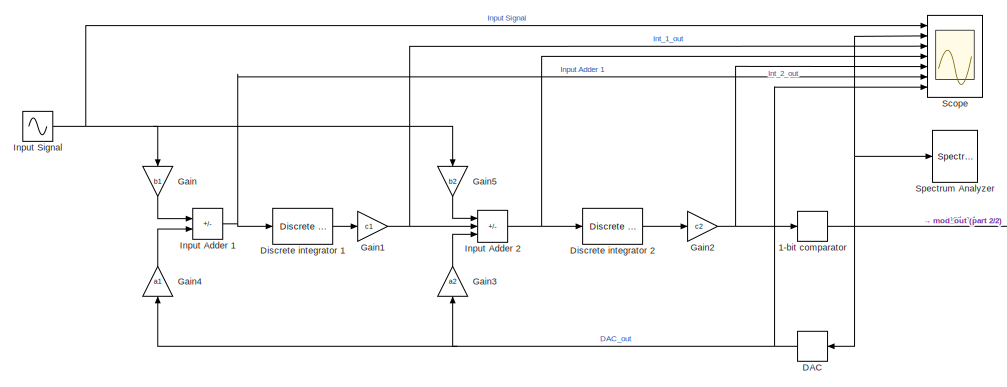
[diagram: root canvas - part 1/2, left side, full height]
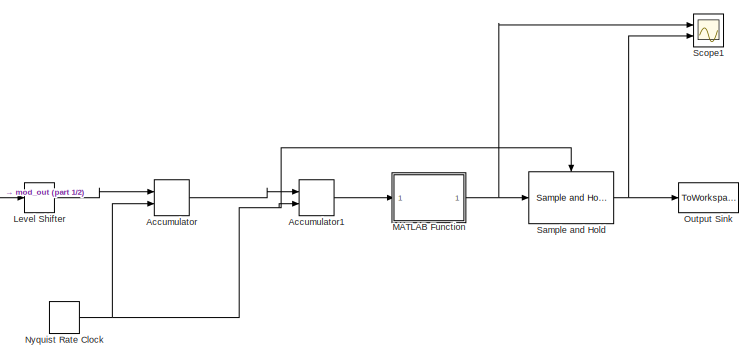
[diagram: root canvas - part 2/2, right side, full height]
MODEL slx_cf5fac6212e2
KIND model
CONFIG AbsTol = auto
CONFIG EnableMultiTasking = off
CONFIG FixedStep = auto
CONFIG MaxStep = auto
CONFIG MinStep = auto
CONFIG RelTol = 1e-3
CONFIG SampleTimeConstraint = Unconstrained
CONFIG SolverName = VariableStepAuto
CONFIG StartTime = 0.0
CONFIG StopTime = 1 - 1/5.12e6
BLOCK [Relay] 1-bit comparator
  OffOutputValue = -1
  OffSwitchValue = 0
  OnSwitchValue = 0
BLOCK [DiscreteIntegrator] Accumulator
  ExternalReset = rising
  ICPrevOutput = DiscIntNeverNeededParam
  ICPrevScaledInput = DiscIntNeverNeededParam
  InitialConditionSetting = Auto
  IntegratorMethod = Accumulation: Forward Euler
  Ports = [2, 1]
  SampleTime = -1
BLOCK [DiscreteIntegrator] Accumulator1
  ExternalReset = rising
  ICPrevOutput = DiscIntNeverNeededParam
  ICPrevScaledInput = DiscIntNeverNeededParam
  InitialConditionSetting = Auto
  IntegratorMethod = Accumulation: Forward Euler
  Ports = [2, 1]
  SampleTime = -1
BLOCK [Relay] DAC
  OffOutputValue = -0.9
  OffSwitchValue = -1
  OnOutputValue = 0.9
  OnSwitchValue = 1
BLOCK [Reference] Discrete integrator 1  REF=simulink_extras/Additional
Discrete/Discrete
Transfer Fcn
(with initial states)
  Ports = [1, 1]
  SourceBlock = simulink_extras/Additional\nDiscrete/Discrete\nTransfer Fcn\n(with initial states)
  SourceProductBaseCode = SL
  SourceType = Discrete Transfer Function with Initial States
BLOCK [Reference] Discrete integrator 2  REF=simulink_extras/Additional
Discrete/Discrete
Transfer Fcn
(with initial states)
  Ports = [1, 1]
  SourceBlock = simulink_extras/Additional\nDiscrete/Discrete\nTransfer Fcn\n(with initial states)
  SourceProductBaseCode = SL
  SourceType = Discrete Transfer Function with Initial States
BLOCK [Gain] Gain
  Gain = b1
  NameLocation = left
BLOCK [Gain] Gain1
  Gain = c1
BLOCK [Gain] Gain2
  Gain = c2
BLOCK [Gain] Gain3
  Gain = a2
  NameLocation = right
BLOCK [Gain] Gain4
  Gain = a1
  NameLocation = right
BLOCK [Gain] Gain5
  Gain = b2
  NameLocation = left
BLOCK [Sum] Input Adder 1
  IconShape = rectangular
  Inputs = +-
  Ports = [2, 1]
BLOCK [Sum] Input Adder 2 
  IconShape = rectangular
  Inputs = ++-
  Ports = [3, 1]
BLOCK [Sin] Input Signal
  Amplitude = vin
  Frequency = f*2*pi
  Ports = [0, 1]
  SampleTime = 1/5.12e6
BLOCK [Relay] Level Shifter
  OffSwitchValue = -1
  OnSwitchValue = 1
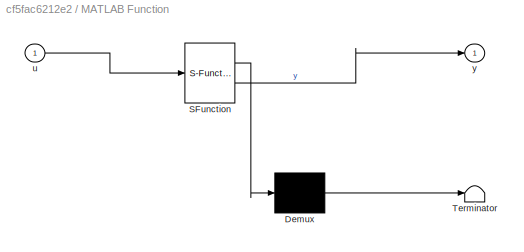
BLOCK [SubSystem] MATLAB Function
  ErrorFcn = Stateflow.Translate.translate
  PermitHierarchicalResolution = ExplicitOnly
  Ports = [1, 1]
  RequestExecContextInheritance = off
  SFBlockType = MATLAB Function
  TreatAsAtomicUnit = on
BLOCK [Demux] MATLAB Function/ Demux 
  Outputs = 1
  Ports = [1, 1]
BLOCK [S-Function] MATLAB Function/ SFunction 
  EnableBusSupport = on
  FunctionName = sf_sfun
  PortCounts = [1 2]
  Ports = [1, 2]
  SFcnIsStateOwnerBlock = off
  SFunctionDeploymentMode = off
  Tag = Stateflow S-Function 2
BLOCK [Terminator] MATLAB Function/ Terminator 
BLOCK [Inport] MATLAB Function/u
BLOCK [Outport] MATLAB Function/y
BLOCK [DiscretePulseGenerator] Nyquist Rate Clock
  Period = 1/10e3
  Ports = [0, 1]
  PulseType = Time based
  PulseWidth = 50
BLOCK [ToWorkspace] Output Sink
  FixptAsFi = on
  MaxDataPoints = inf
  Ports = [1]
  SampleTime = -1
  SaveFormat = Timeseries
  VariableName = simout
BLOCK [Reference] Sample and Hold  REF=dspsigops/Sample
and Hold
  Ports = [1, 1, 0, 1]
  SourceBlock = dspsigops/Sample\nand Hold
  SourceProductBaseCode = DS
  SourceType = Sample and Hold
BLOCK [Scope] Scope
  Floating = off
  NumInputPorts = 7
  Ports = [7]
  ScopeSpecificationString = Simulink.scopes.TimeScopeBlockCfg('CurrentConfiguration', extmgr.ConfigurationSet(extmgr.Configuration('Core','General UI',true),extmgr.Configuration('Core','Source UI',true),extmgr.Configuration('Sources','WiredSimulink',true),extmgr.Configuration('Visuals','Time Domain',true,'SerializedDisplays',{struct('MinYLimReal','-0.7875','MaxYLimReal','0.7875','YLabelReal','','MinYLimMag','0.00000','MaxYLi...<+6563ch>
BLOCK [Scope] Scope1
  Floating = off
  NumInputPorts = 2
  Ports = [2]
  ScopeSpecificationString = Simulink.scopes.TimeScopeBlockCfg('CurrentConfiguration', extmgr.ConfigurationSet(extmgr.Configuration('Core','General UI',true),extmgr.Configuration('Core','Source UI',true),extmgr.Configuration('Sources','WiredSimulink',true,'DataLoggingVariableName','ScopeData1'),extmgr.Configuration('Visuals','Time Domain',true,'SerializedDisplays',{struct('MinYLimReal','-23.31024','MaxYLimReal','170.03458','Y...<+2083ch>
BLOCK [SpectrumAnalyzer] Spectrum Analyzer
  Commented = on
  Ports = [1]
  ScopeSpecificationString = spbscopes.SpectrumAnalyzerBlockCfg('CurrentConfiguration', extmgr.ConfigurationSet(extmgr.Configuration('Core','General UI',true),extmgr.Configuration('Core','Source UI',true),extmgr.Configuration('Sources','WiredSimulink',true),extmgr.Configuration('Sources','SimulinkEvent',false),extmgr.Configuration('Sources','Simulink',false),extmgr.Configuration('Sources','File',false),extmgr.Configuration('S...<+3590ch>
NET 1-bit comparator:1 -> DAC:1, Level Shifter:1, Scope:2, Spectrum Analyzer:1
LINE Accumulator1:1 -> MATLAB Function:1
LINE Accumulator:1 -> Accumulator1:1
NET DAC:1 -> Gain3:1, Gain4:1, Scope:7
LINE Discrete integrator 1:1 -> Gain1:1
LINE Discrete integrator 2:1 -> Gain2:1
NET Gain1:1 -> Input Adder 2 :2, Scope:3
NET Gain2:1 -> 1-bit comparator:1, Scope:5
LINE Gain3:1 -> Input Adder 2 :3
LINE Gain4:1 -> Input Adder 1:2
LINE Gain5:1 -> Input Adder 2 :1
LINE Gain:1 -> Input Adder 1:1
NET Input Adder 1:1 -> Discrete integrator 1:1, Scope:6
NET Input Adder 2 :1 -> Discrete integrator 2:1, Scope:4
NET Input Signal:1 -> Gain5:1, Gain:1, Scope:1
LINE Level Shifter:1 -> Accumulator:1
NET MATLAB Function:1 -> Sample and Hold:1, Scope1:1
NET Nyquist Rate Clock:1 -> Accumulator1:2, Accumulator:2, Sample and Hold:trigger
NET Sample and Hold:1 -> Output Sink:1, Scope1:2
note: NET lines group one-source signal fan-out (src -> all destinations, sorted); 1:1 wires keep LINE
CHART MATLAB Function states=1 transitions=1
  STATE_LABEL 'eML_blk_kernel()'
  STATE_LABEL 'SCRIPT:\nfunction y = postproc(u)\n\n    y_17 = mod(u,2);\n    u = floor(u/2);\n    y_16 = mod(u,2);\n    u = floor(u/2);\n    y_15 = mod(u,2);\n    u = floor(u/2);\n    y_14 = mod(u,2);\n    u = floor(u/2);\n    y_13 = mod(u,2);\n    u = floor(u/2);\n    y_12 = mod(u,2);\n    u = floor(u/2);\n    y_11 = mod(u,2);\n    u = floor(u/2);\n    y_10 = mod(u,2);\n    u = floor(u/2);\n    y_9 = mod(u,2);\n    u = floor(u/2)...<+473ch>'
CHART  states=0 transitions=0
